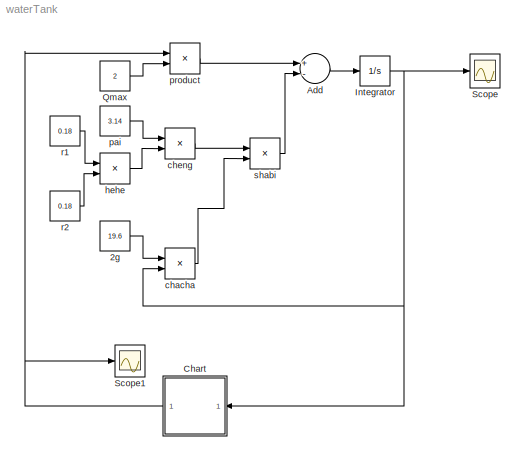
MODEL waterTank
KIND model
BLOCK [Constant] 2g
  SID = 16
  Value = 19.6
BLOCK [Sum] Add
  InputSameDT = off
  Inputs = +-
  OutDataTypeStr = Inherit: Inherit via internal rule
  Ports = [2, 1]
  SID = 1
  SampleTime = 0.001
  SaturateOnIntegerOverflow = off
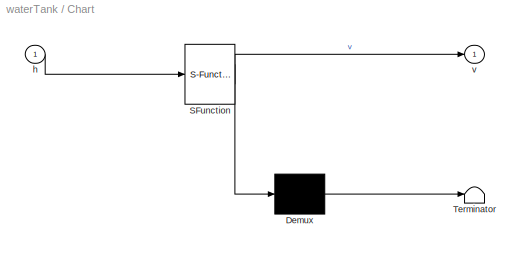
BLOCK [SubSystem] Chart
  ErrorFcn = Stateflow.Translate.translate
  PermitHierarchicalResolution = ExplicitOnly
  Ports = [1, 1]
  RequestExecContextInheritance = off
  SFBlockType = Chart
  SID = 44
  TreatAsAtomicUnit = on
BLOCK [Demux] Chart/ Demux 
  Outputs = 1
  Ports = [1, 1]
  SID = 44::71
BLOCK [S-Function] Chart/ SFunction 
  EnableBusSupport = on
  FunctionName = sf_sfun
  PortCounts = [1 2]
  Ports = [1, 2]
  SFcnIsStateOwnerBlock = off
  SFunctionDeploymentMode = off
  SID = 44::70
  Tag = Stateflow S-Function waterTank 3
BLOCK [Terminator] Chart/ Terminator 
  SID = 44::72
BLOCK [Inport] Chart/h
  IconDisplay = Port number
  SID = 44::65
BLOCK [Outport] Chart/v
  IconDisplay = Port number
  SID = 44::66
BLOCK [Integrator] Integrator
  InitialCondition = 4.5
  Ports = [1, 1]
  SID = 3
BLOCK [Constant] Qmax
  SID = 4
  Value = 2
BLOCK [Scope] Scope
  Floating = off
  NumInputPorts = 1
  Ports = [1]
  SID = 19
  ScopeSpecificationString = Simulink.scopes.TimeScopeBlockCfg('CurrentConfiguration', extmgr.ConfigurationSet(extmgr.Configuration('Core','General UI',true),extmgr.Configuration('Core','Source UI',true),extmgr.Configuration('Sources','WiredSimulink',true,'DataLoggingSaveFormat','StructureWithTime','DataLoggingMaxPoints','50000000','DataLoggingLimitDataPoints',true,'DataLoggingDecimation','1','DataLoggingDecimateData',true),e...<+1730ch>
BLOCK [Scope] Scope1
  Floating = off
  NumInputPorts = 1
  Ports = [1]
  SID = 20
  ScopeSpecificationString = Simulink.scopes.TimeScopeBlockCfg('CurrentConfiguration', extmgr.ConfigurationSet(extmgr.Configuration('Core','General UI',true),extmgr.Configuration('Core','Source UI',true),extmgr.Configuration('Sources','WiredSimulink',true,'DataLoggingVariableName','ScopeData1','DataLoggingSaveFormat','StructureWithTime','DataLoggingLimitDataPoints',true,'DataLoggingDecimation','1','DataLoggingDecimateData',tr...<+1643ch>
BLOCK [Product] chacha
  InputSameDT = off
  Inputs = **
  OutDataTypeStr = Inherit: Inherit via internal rule
  Ports = [2, 1]
  RndMeth = Floor
  SID = 13
  SampleTime = 0.001
  SaturateOnIntegerOverflow = off
BLOCK [Product] cheng
  InputSameDT = off
  Inputs = **
  OutDataTypeStr = Inherit: Inherit via internal rule
  Ports = [2, 1]
  RndMeth = Floor
  SID = 9
  SampleTime = 0.001
  SaturateOnIntegerOverflow = off
BLOCK [Product] hehe
  InputSameDT = off
  Inputs = **
  OutDataTypeStr = Inherit: Inherit via internal rule
  Ports = [2, 1]
  RndMeth = Floor
  SID = 12
  SampleTime = 0.001
  SaturateOnIntegerOverflow = off
BLOCK [Constant] pai
  SID = 6
  Value = 3.14
BLOCK [Product] product
  InputSameDT = off
  Inputs = **
  OutDataTypeStr = Inherit: Inherit via internal rule
  Ports = [2, 1]
  RndMeth = Floor
  SID = 2
  SampleTime = 0.001
  SaturateOnIntegerOverflow = off
BLOCK [Constant] r1
  SID = 14
  Value = 0.18
BLOCK [Constant] r2
  SID = 15
  Value = 0.18
BLOCK [Product] shabi
  InputSameDT = off
  Inputs = **
  OutDataTypeStr = Inherit: Inherit via internal rule
  Ports = [2, 1]
  RndMeth = Floor
  SID = 11
  SampleTime = 0.001
  SaturateOnIntegerOverflow = off
LINE 2g:1 -> chacha:1
LINE Add:1 -> Integrator:1
LINE Chart/ Demux :1 -> Chart/ Terminator :1
LINE Chart/ SFunction :1 -> Chart/ Demux :1
LINE Chart/ SFunction :2 -> Chart/v:1
LINE Chart/h:1 -> Chart/ SFunction :1
NET Chart:1 -> Scope1:1, product:1
NET Integrator:1 -> Chart:1, Scope:1, chacha:2
LINE Qmax:1 -> product:2
LINE chacha:1 -> shabi:2
LINE cheng:1 -> shabi:1
LINE hehe:1 -> cheng:2
LINE pai:1 -> cheng:1
LINE product:1 -> Add:1
LINE r1:1 -> hehe:1
LINE r2:1 -> hehe:2
LINE shabi:1 -> Add:2
note: NET lines group one-source signal fan-out (src -> all destinations, sorted); 1:1 wires keep LINE
CHART Chart states=2 transitions=3
  STATE_LABEL 'on\\nentry:v=1;'
  STATE_LABEL 'off\\nentry:v=0;'
